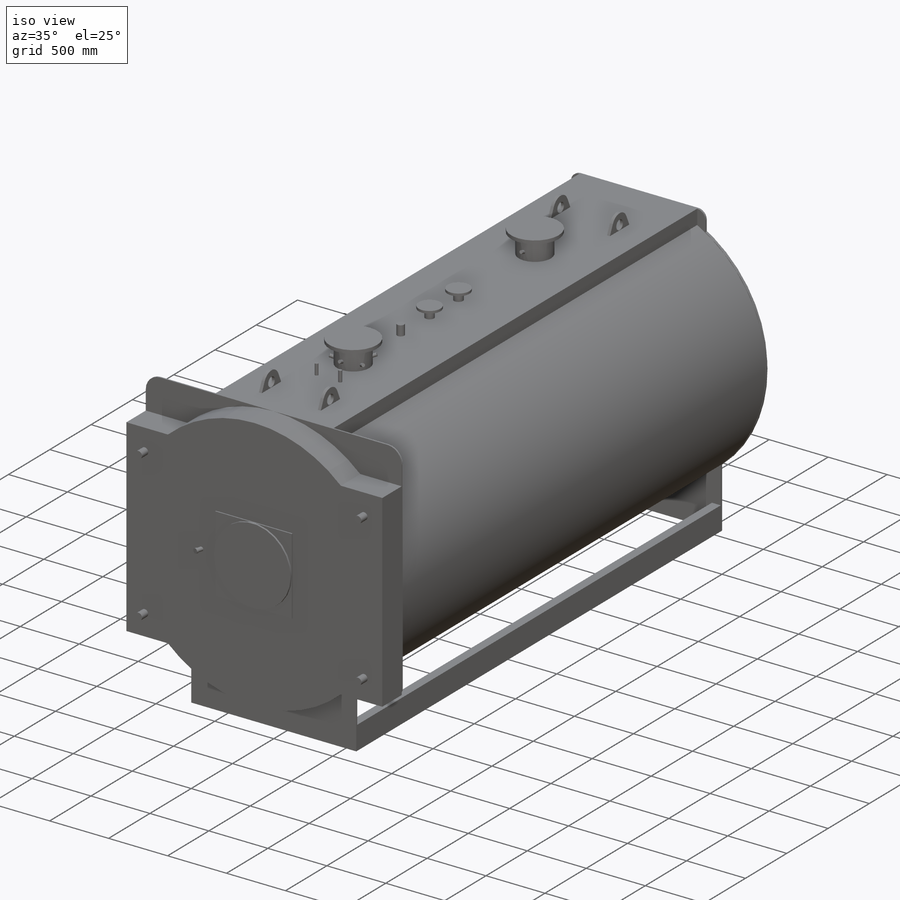
[diagram: iso view]
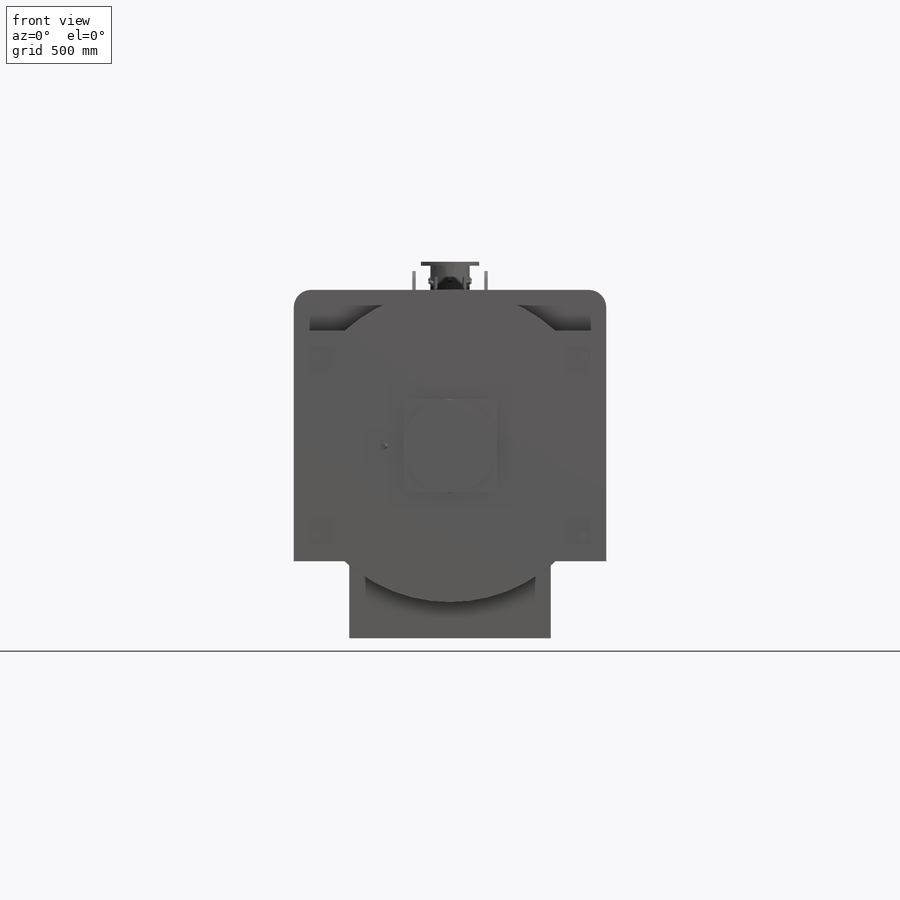
[diagram: front view]
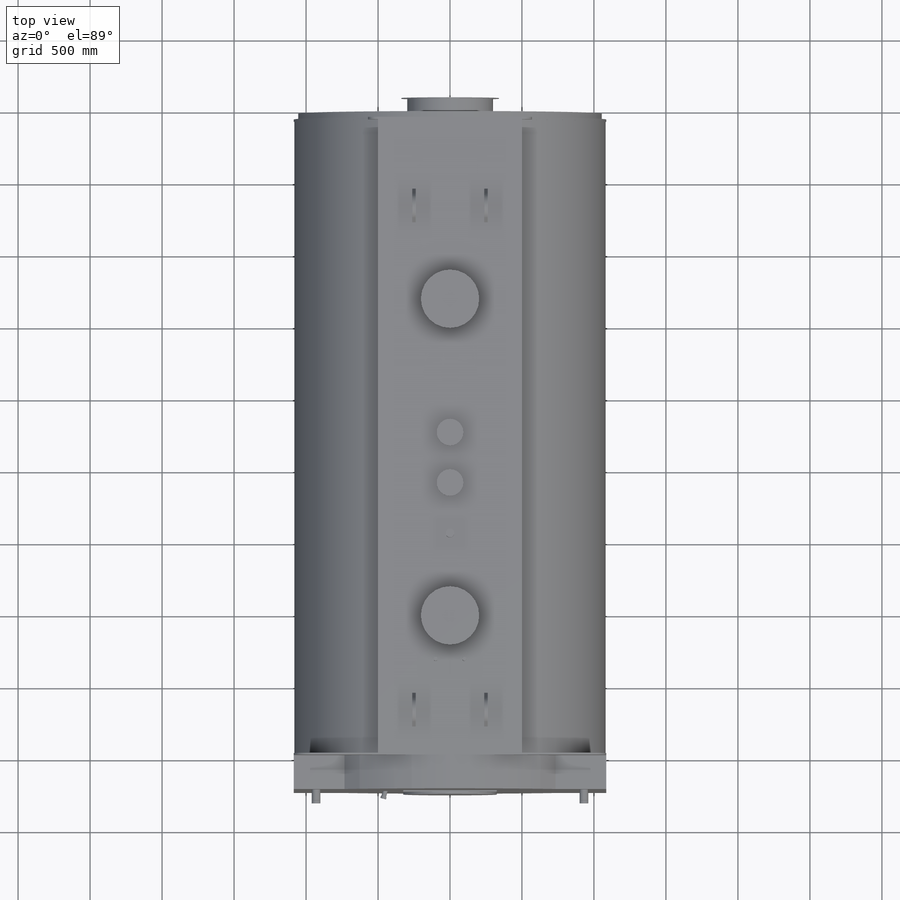
[diagram: top view]
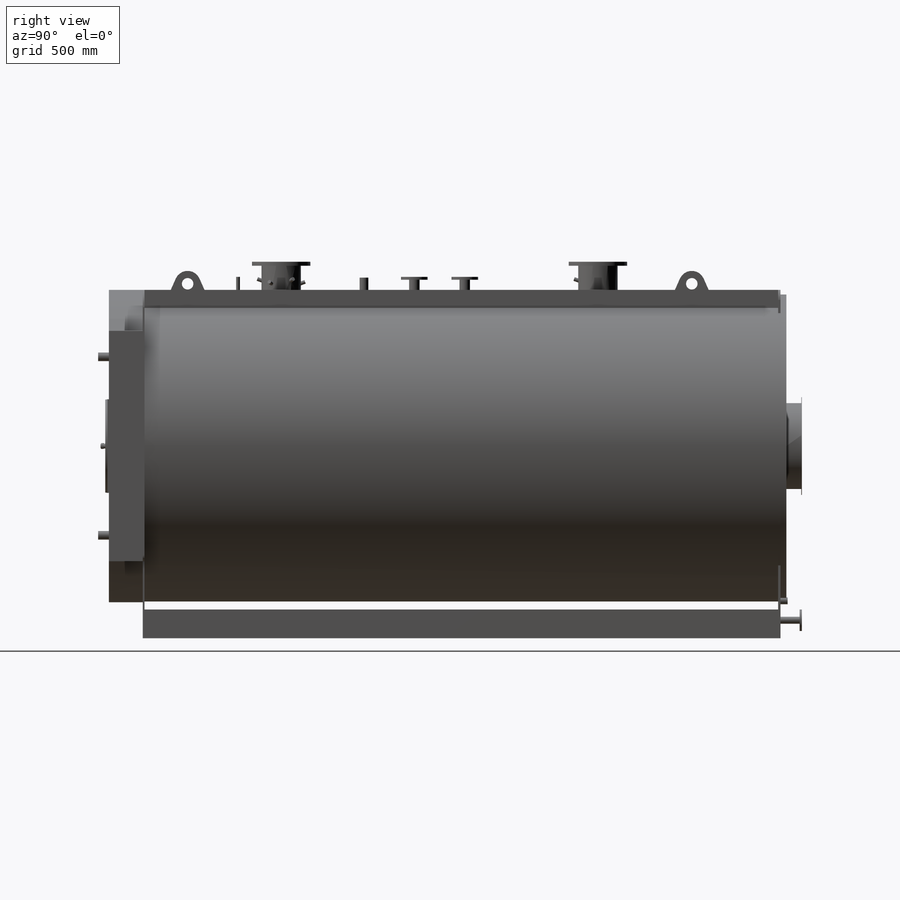
[diagram: right view]
SOLIDWORKS PART (.sldprt)
format: sldprt  version: not decoded by parser v0  size: 731,136 bytes
history: native  units: mm
features: sketch x23, extrude x17, revolve x5, plane x4, mirror x2, material x1, pattern_circular x1 + 2 further entries (+13 scaffold rows collapsed; 3 parser-record rows omitted)
feature tree (71):
  scaffold x13  (default folders/planes/origin — collapsed)
  material  "Materiale <non specificato>"
  plane  "Piano frontale"
  plane  "Piano superiore"
  plane  "Piano destro"
  "Asse Y"
  "Asse Z"
  sketch  "Schizzo1"  dims[c1.D5=120.0mm c1.D6=40.0mm c1.D1=1300.0mm c1.D2=2420.0mm c1.D3=480.0mm c1.D4=2170.0mm c2.D1=1400.0mm c2.D3=535.0mm]
  extrude  "piastra anteriore"  Depth=12mm
  sketch  "Schizzo2"  dims[c1.D1=2165.0mm c1.D2=1335.0mm c1.D3=1000.0mm c2.D1=4402.0mm c2.D5=10.0mm c2.D6=10.0mm c2.D7=5.0mm]
  plane  "Piano1"
  sketch  "Schizzo3"  dims[D1=2170.0mm D3=70.0mm D2=1140.0mm]
  extrude  "piastra posteriore"  Depth=16mm
  sketch  "Schizzo5"  dims[c1.D1=598.0mm c1.D2=680.0mm c1.D3=108.0mm c1.D4=5.0mm c2.D3=5.0mm c2.D5=2110.0mm c2.D6=41.0mm c2.D7=149.0mm]
  revolve  "camera fumo"  Angle=360deg
  sketch  "Schizzo6"  dims[D1=200.0mm D2=75.0mm]
  extrude  "basamento"  Depth=10mm
  mirror  "Specchia2"
  parser-record x3  (decoder bookkeeping rows leaked as tree rows — omitted from the tree; the rows remain in map.json)
  sketch  "Schizzo7"  dims[D2=2170.0mm D1=1600.0mm]
  extrude  "Estrusione-Estrusione3"  Depth=235mm
  sketch  "Schizzo8"  dims[D1=650.0mm]
  extrude  "Estrusione-Estrusione4"  Depth=10mm
  sketch  "Schizzo9"
  extrude  "Estrusione-Estrusione5"  Depth=15mm
  sketch  "Schizzo11"  dims[c1.D1=~338.019126mm c2.D1=75.0deg c2.D2=450.0mm c2.D3=33.4mm c2.D4=40.0mm c2.D5=10.0mm c2.D6=16.0mm c2.D7=55.13mm]
  revolve  "Rivoluzione2"  Angle=360deg
  sketch  "Schizzo12"  dims[c1.D1=60.0mm c1.D2=60.0mm c1.D3=60.0mm c2.D2=930.0mm c2.D3=620.0mm]
  extrude  "Estrusione-Estrusione6"  Depth=75mm
  sketch  "Schizzo13"  dims[c1.D1=273.0mm c1.D3=219.1mm c1.D4=48.3mm c1.D5=~170.849212mm c1.D6=60.3mm c1.D7=48.3mm c1.D8=48.3mm c1.D9=26.7mm c1.D10=219.1mm c2.D4=219.1mm c2.D12=73.0mm c2.D2=962.0mm c2.D3=2200.0mm c2.D5=575.0mm c2.D7=350.0mm c2.D8=350.0mm c2.D9=450.0mm c2.D10=300.0mm c2.D11=200.0mm c3.D4=925.0mm]
  extrude  "Estrusione-Estrusione7"  Depth=1280mm
  sketch  "Schizzo14"  dims[D1=405.0mm]
  extrude  "Estrusione-Estrusione8"  Depth=28mm
  extrude  "Estrusione-Estrusione9"  [1 undecoded]
  sketch  "Schizzo13<3>"  dims[D1=1175.0mm]
  sketch  "Schizzo15"  dims[D1=185.0mm]
  extrude  "Estrusione-Estrusione10"  Depth=20mm
  extrude  "Estrusione-Estrusione11"  [1 undecoded]
  sketch  "Schizzo13<4>"  dims[D1=1170.0mm]
  extrude  "Estrusione-Estrusione12"  [1 undecoded]
  sketch  "Schizzo13<5>"
  sketch  "Schizzo16"  dims[c1.D1=164.0mm c2.D1=70.0deg c2.D2=130.0mm c2.D3=20.0mm c2.D4=174.0mm c2.D5=31.13mm c3.D4=26.9mm c3.D3=50.0mm c3.D5=24.7mm c3.D1=~615.571268mm c4.D1=70.0deg c4.D5=24.7mm]
  revolve  "Rivoluzione3"  Angle=360deg
  sketch  "Schizzo17"  dims[c1.D1=164.0mm c2.D1=70.0deg c2.D2=130.0mm c2.D3=26.7mm c2.D4=50.0mm c2.D5=24.7mm c3.D1=~57.929432mm c4.D1=70.0deg c4.D3=24.7mm]
  revolve  "Rivoluzione4"  Angle=360deg
  sketch  "Schizzo18"  dims[c1.D1=150.0mm c1.D2=164.0mm c2.D2=70.0deg c2.D3=24.7mm c3.D2=~46.819725mm c4.D2=70.0deg c4.D3=24.7mm]
  revolve  "Rivoluzione5"  Angle=360deg
  pattern_circular  "RipetizioneCircolare1"  Count=3 Angle=360deg
  sketch  "Schizzo21"  dims[c1.D1=48.3mm c1.D2=48.3mm c1.D3=48.3mm c1.D4=48.3mm c2.D3=260.0mm c2.D4=125.0mm c2.D5=~746.726188mm c3.D3=260.0mm c3.D5=~711.073133mm c3.D4=125.0mm]
  extrude  "Estrusione-Estrusione13"  Depth=149mm
  extrude  "Estrusione-Estrusione14"  [1 undecoded]
  sketch  "Schizzo21<3>"  dims[D1=50.0mm]
  sketch  "Schizzo22"  dims[D1=150.0mm]
  extrude  "Estrusione-Estrusione15"  Depth=16mm
  sketch  "Schizzo23"  dims[c1.D2=80.0mm c1.D3=80.0mm c1.D4=90.0mm c1.D10=80.0mm c1.D1=250.0mm c2.D3=140.0mm c2.D5=80.0mm c2.D6=987.0mm c2.D7=312.0mm c2.D9=3502.0mm c2.D10=2492.0mm c2.D8=2.0]
  extrude  "golfare"  Depth=25mm
  mirror  "Specchia3"
decode coverage: 40 of 48 modeling features carry decoded parameters; 2 rows unclassified (native names shown)
note: ~ marks probable driven/reference dimensions
note: 4 parameter values undecoded
summary: no parameter record found for 4 features
note: suppression state not decoded; provenance and decode notes live in map.json
